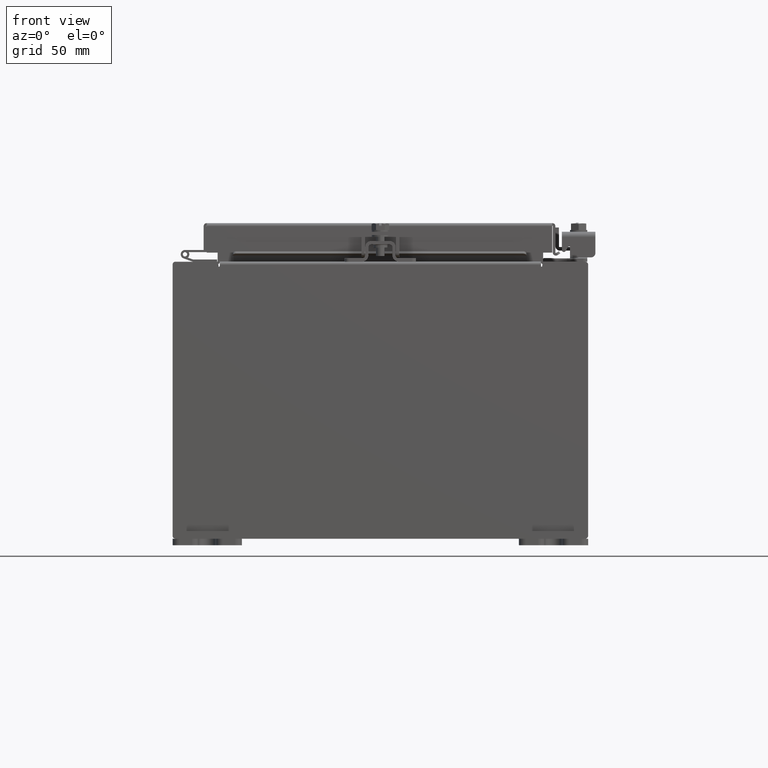
[diagram: clean part render]
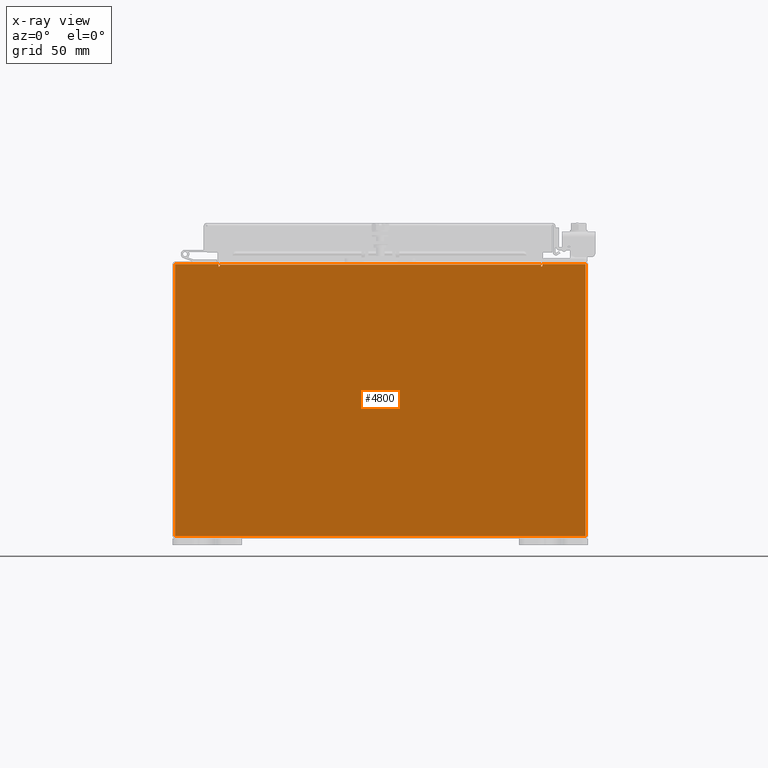
[diagram: x-ray — body ghosted, one internal face saturated and labeled with its STEP entity id]
A machine part, front view, then the same camera in x-ray: the body is ghosted and one INTERNAL B-rep face — a face not visible from any outside direction — is saturated and labeled: STEP entity #4800.
In plain terms, the highlighted planar face has unit normal (0, -1, 0).
Its self-contained STEP definition (entity closure, byte-faithful):
#462 = EDGE_CURVE ( 'NONE', #9816, #18242, #8166, .T. ) ;
#1355 = ORIENTED_EDGE ( 'NONE', *, *, #15062, .F. ) ;
#1467 = CARTESIAN_POINT ( 'NONE',  ( 4.674550000000002600, -0.07470000000000015500, 3.874949999999999200 ) ) ;
#1608 = EDGE_CURVE ( 'NONE', #22362, #7586, #14043, .T. ) ;
#1715 = EDGE_CURVE ( 'NONE', #19570, #9816, #17498, .T. ) ;
#1794 = VECTOR ( 'NONE', #21205, 39.37007874015748100 ) ;
#2071 = DIRECTION ( 'NONE',  ( 0.0000000000000000000, 0.0000000000000000000, 1.000000000000000000 ) ) ;
#2192 = VERTEX_POINT ( 'NONE', #12413 ) ;
#2199 = CARTESIAN_POINT ( 'NONE',  ( 4.637200000000002700, -0.07470000000000015500, 3.874949999999999200 ) ) ;
#3090 = EDGE_CURVE ( 'NONE', #3825, #22753, #21816, .T. ) ;
#3335 = VECTOR ( 'NONE', #6669, 39.37007874015748100 ) ;
#3399 = CARTESIAN_POINT ( 'NONE',  ( 5.925300000000002700, -0.07470000000000015500, 3.925299999999999100 ) ) ;
#3603 = VERTEX_POINT ( 'NONE', #5561 ) ;
#3668 = DIRECTION ( 'NONE',  ( 1.085143195100001200E-014, 1.695536242343751900E-015, 1.000000000000000000 ) ) ;
#3825 = VERTEX_POINT ( 'NONE', #16491 ) ;
#3858 = EDGE_CURVE ( 'NONE', #21103, #3825, #10566, .T. ) ;
#3919 = VECTOR ( 'NONE', #2071, 39.37007874015748100 ) ;
#3973 = CARTESIAN_POINT ( 'NONE',  ( -5.925299999999998200, -0.07470000000000015500, -3.925300000000000500 ) ) ;
#4267 = LINE ( 'NONE', #14468, #10815 ) ;
#4416 = CARTESIAN_POINT ( 'NONE',  ( -4.637199999999998200, -0.07470000000000015500, 3.912299999999999200 ) ) ;
#4425 = VECTOR ( 'NONE', #4458, 39.37007874015748100 ) ;
#4438 = CARTESIAN_POINT ( 'NONE',  ( -4.637199999999998200, -0.07470000000000015500, 3.912299999999999200 ) ) ;
#4458 = DIRECTION ( 'NONE',  ( 0.0000000000000000000, 0.0000000000000000000, -1.000000000000000000 ) ) ;
#4555 = ORIENTED_EDGE ( 'NONE', *, *, #1608, .F. ) ;
#4601 = CARTESIAN_POINT ( 'NONE',  ( -4.674549999999998200, -0.07470000000000015500, 3.925299999999999100 ) ) ;
#4626 = DIRECTION ( 'NONE',  ( 0.0000000000000000000, 0.0000000000000000000, -1.000000000000000000 ) ) ;
#4760 = DIRECTION ( 'NONE',  ( 1.000000000000000000, 0.0000000000000000000, 0.0000000000000000000 ) ) ;
#4800 = ADVANCED_FACE ( 'NONE', ( #12504 ), #12096, .T. ) ;
#5226 = VECTOR ( 'NONE', #4626, 39.37007874015748100 ) ;
#5443 = ORIENTED_EDGE ( 'NONE', *, *, #462, .F. ) ;
#5457 = EDGE_CURVE ( 'NONE', #7586, #19747, #16319, .T. ) ;
#5561 = CARTESIAN_POINT ( 'NONE',  ( -5.925299999999998200, -0.07470000000000015500, 3.925299999999999100 ) ) ;
#5634 = DIRECTION ( 'NONE',  ( 0.0000000000000000000, 0.0000000000000000000, -1.000000000000000000 ) ) ;
#6386 = EDGE_CURVE ( 'NONE', #2192, #21103, #11385, .T. ) ;
#6669 = DIRECTION ( 'NONE',  ( -1.000000000000000000, -0.0000000000000000000, -0.0000000000000000000 ) ) ;
#6843 = EDGE_LOOP ( 'NONE', ( #18814, #21597, #10311, #1355, #12292, #4555, #15410, #12591, #21248, #15426, #10579, #5443 ) ) ;
#7307 = VECTOR ( 'NONE', #4760, 39.37007874015748100 ) ;
#7586 = VERTEX_POINT ( 'NONE', #17243 ) ;
#7802 = DIRECTION ( 'NONE',  ( 0.0000000000000000000, -0.0000000000000000000, -1.000000000000000000 ) ) ;
#7817 = EDGE_CURVE ( 'NONE', #18242, #2192, #16740, .T. ) ;
#7922 = AXIS2_PLACEMENT_3D ( 'NONE', #19857, #9432, #5634 ) ;
#8166 = LINE ( 'NONE', #9388, #3919 ) ;
#8665 = CARTESIAN_POINT ( 'NONE',  ( -5.925299999999998200, -0.07470000000000015500, -3.925300000000000500 ) ) ;
#9388 = CARTESIAN_POINT ( 'NONE',  ( -4.637199999999998200, -0.07470000000000015500, 3.874949999999999200 ) ) ;
#9432 = DIRECTION ( 'NONE',  ( 0.0000000000000000000, -1.000000000000000000, 0.0000000000000000000 ) ) ;
#9816 = VERTEX_POINT ( 'NONE', #20215 ) ;
#10311 = ORIENTED_EDGE ( 'NONE', *, *, #17669, .F. ) ;
#10566 = CIRCLE ( 'NONE', #7922, 0.01867500000000003900 ) ;
#10579 = ORIENTED_EDGE ( 'NONE', *, *, #7817, .F. ) ;
#10693 = DIRECTION ( 'NONE',  ( 0.0000000000000000000, 0.0000000000000000000, -1.000000000000000000 ) ) ;
#10728 = EDGE_CURVE ( 'NONE', #22753, #22362, #4267, .T. ) ;
#10815 = VECTOR ( 'NONE', #21756, 39.37007874015748100 ) ;
#11363 = CARTESIAN_POINT ( 'NONE',  ( 4.637200000000002700, -0.07470000000000015500, 3.912299999999999200 ) ) ;
#11385 = LINE ( 'NONE', #11363, #4425 ) ;
#12096 = PLANE ( 'NONE',  #22357 ) ;
#12292 = ORIENTED_EDGE ( 'NONE', *, *, #5457, .F. ) ;
#12413 = CARTESIAN_POINT ( 'NONE',  ( 4.637200000000002700, -0.07470000000000015500, 3.912299999999999200 ) ) ;
#12504 = FACE_OUTER_BOUND ( 'NONE', #6843, .T. ) ;
#12508 = CARTESIAN_POINT ( 'NONE',  ( 0.0000000000000000000, -0.07470000000000015500, 0.0000000000000000000 ) ) ;
#12591 = ORIENTED_EDGE ( 'NONE', *, *, #3090, .F. ) ;
#13283 = LINE ( 'NONE', #4601, #1794 ) ;
#13732 = VECTOR ( 'NONE', #23206, 39.37007874015748100 ) ;
#13773 = VECTOR ( 'NONE', #3668, 39.37007874015748100 ) ;
#14043 = LINE ( 'NONE', #14761, #5226 ) ;
#14468 = CARTESIAN_POINT ( 'NONE',  ( -5.925299999999998200, -0.07470000000000015500, 3.925299999999999100 ) ) ;
#14761 = CARTESIAN_POINT ( 'NONE',  ( 5.925300000000002700, -0.07470000000000015500, 3.925299999999999100 ) ) ;
#14881 = LINE ( 'NONE', #18892, #17932 ) ;
#14986 = VERTEX_POINT ( 'NONE', #16719 ) ;
#15062 = EDGE_CURVE ( 'NONE', #19747, #3603, #22393, .T. ) ;
#15410 = ORIENTED_EDGE ( 'NONE', *, *, #10728, .F. ) ;
#15426 = ORIENTED_EDGE ( 'NONE', *, *, #6386, .F. ) ;
#15684 = CARTESIAN_POINT ( 'NONE',  ( -5.925299999999998200, -0.07470000000000015500, 3.925299999999999100 ) ) ;
#16319 = LINE ( 'NONE', #3973, #3335 ) ;
#16491 = CARTESIAN_POINT ( 'NONE',  ( 4.674550000000002600, -0.07470000000000015500, 3.874949999999999200 ) ) ;
#16719 = CARTESIAN_POINT ( 'NONE',  ( -4.674549999999998200, -0.07470000000000015500, 3.925299999999999100 ) ) ;
#16740 = LINE ( 'NONE', #4416, #7307 ) ;
#16886 = CARTESIAN_POINT ( 'NONE',  ( 4.674550000000001800, -0.07470000000000015500, 3.925299999999999100 ) ) ;
#16975 = EDGE_CURVE ( 'NONE', #14986, #19570, #13283, .T. ) ;
#17076 = AXIS2_PLACEMENT_3D ( 'NONE', #22765, #17434, #10693 ) ;
#17210 = DIRECTION ( 'NONE',  ( 1.000000000000000000, 0.0000000000000000000, 0.0000000000000000000 ) ) ;
#17243 = CARTESIAN_POINT ( 'NONE',  ( 5.925300000000002700, -0.07470000000000015500, -3.925300000000000500 ) ) ;
#17434 = DIRECTION ( 'NONE',  ( 0.0000000000000000000, -1.000000000000000000, 0.0000000000000000000 ) ) ;
#17498 = CIRCLE ( 'NONE', #17076, 0.01867500000000003900 ) ;
#17525 = DIRECTION ( 'NONE',  ( 0.0000000000000000000, -1.000000000000000000, 0.0000000000000000000 ) ) ;
#17669 = EDGE_CURVE ( 'NONE', #3603, #14986, #14881, .T. ) ;
#17932 = VECTOR ( 'NONE', #17210, 39.37007874015748100 ) ;
#18242 = VERTEX_POINT ( 'NONE', #4438 ) ;
#18814 = ORIENTED_EDGE ( 'NONE', *, *, #1715, .F. ) ;
#18892 = CARTESIAN_POINT ( 'NONE',  ( -5.925299999999998200, -0.07470000000000015500, 3.925299999999999100 ) ) ;
#19524 = CARTESIAN_POINT ( 'NONE',  ( -4.674549999999998200, -0.07470000000000015500, 3.874949999999999200 ) ) ;
#19570 = VERTEX_POINT ( 'NONE', #19524 ) ;
#19747 = VERTEX_POINT ( 'NONE', #8665 ) ;
#19857 = CARTESIAN_POINT ( 'NONE',  ( 4.655875000000002700, -0.07470000000000015500, 3.874949999999999200 ) ) ;
#20215 = CARTESIAN_POINT ( 'NONE',  ( -4.637199999999998200, -0.07470000000000015500, 3.874949999999999200 ) ) ;
#21103 = VERTEX_POINT ( 'NONE', #2199 ) ;
#21205 = DIRECTION ( 'NONE',  ( 0.0000000000000000000, -1.695536242343751900E-015, -1.000000000000000000 ) ) ;
#21248 = ORIENTED_EDGE ( 'NONE', *, *, #3858, .F. ) ;
#21597 = ORIENTED_EDGE ( 'NONE', *, *, #16975, .F. ) ;
#21756 = DIRECTION ( 'NONE',  ( 1.000000000000000000, 0.0000000000000000000, 0.0000000000000000000 ) ) ;
#21816 = LINE ( 'NONE', #1467, #13773 ) ;
#22357 = AXIS2_PLACEMENT_3D ( 'NONE', #12508, #17525, #7802 ) ;
#22362 = VERTEX_POINT ( 'NONE', #3399 ) ;
#22393 = LINE ( 'NONE', #15684, #13732 ) ;
#22753 = VERTEX_POINT ( 'NONE', #16886 ) ;
#22765 = CARTESIAN_POINT ( 'NONE',  ( -4.655874999999998200, -0.07470000000000015500, 3.874949999999999200 ) ) ;
#23206 = DIRECTION ( 'NONE',  ( -0.0000000000000000000, -0.0000000000000000000, 1.000000000000000000 ) ) ;